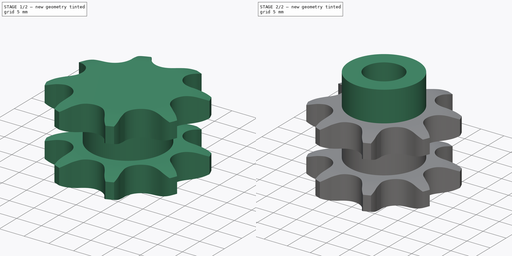
[diagram: build sequence overview — one tinted view per stage of 2, left to right]
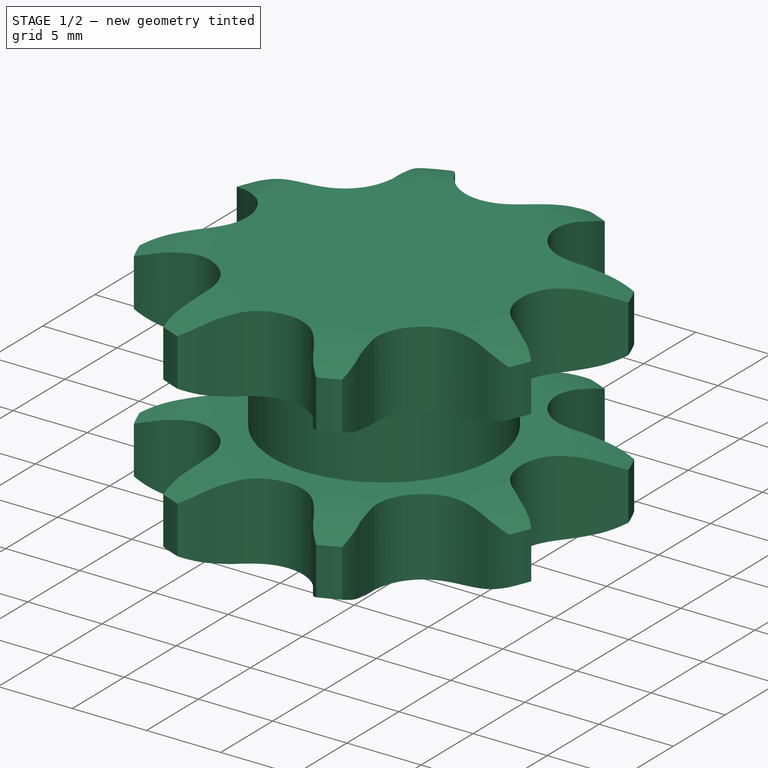
[diagram: stage 1 of 2 — iso view after this stage's code; geometry added in this stage tinted green]
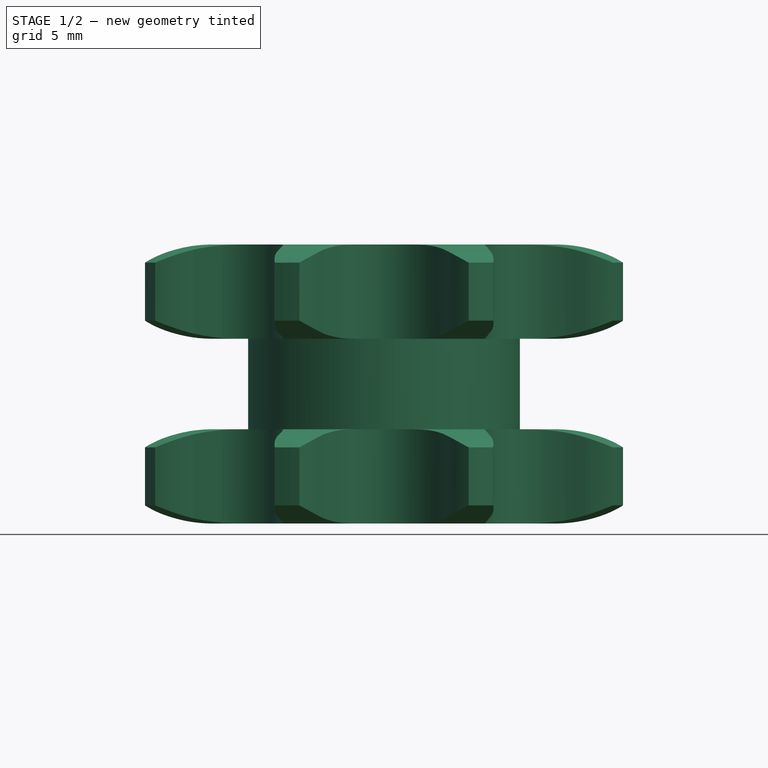
[diagram: stage 1 of 2 — front view after this stage's code; geometry added in this stage tinted green]
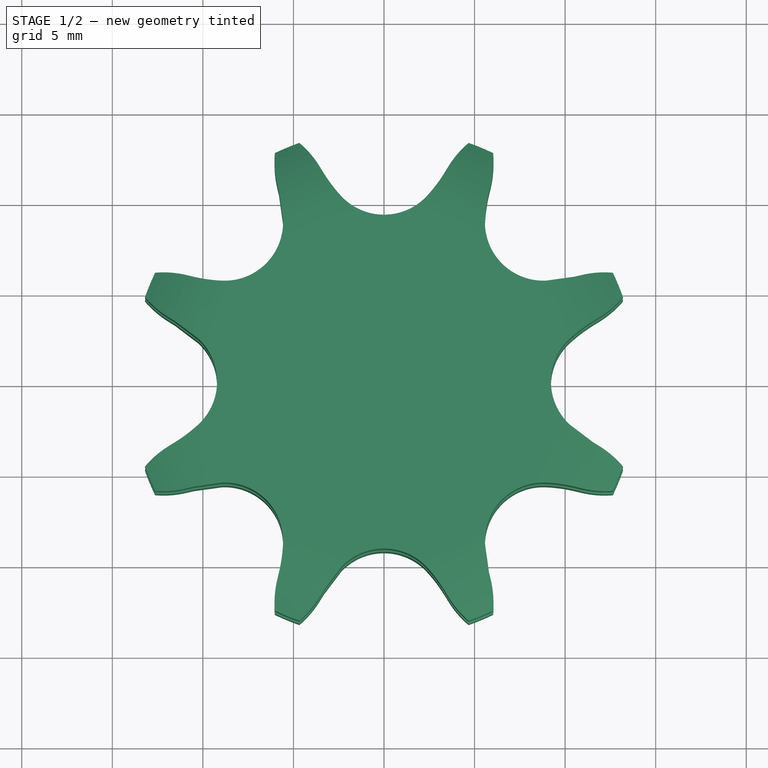
[diagram: stage 1 of 2 — top view after this stage's code; geometry added in this stage tinted green]
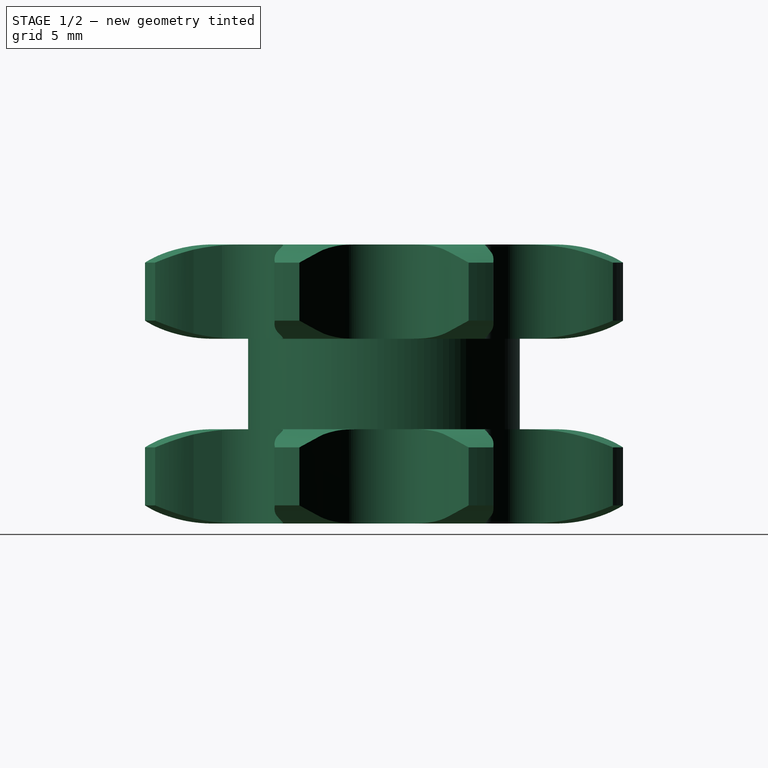
[diagram: stage 1 of 2 — right view after this stage's code; geometry added in this stage tinted green]
FCSTD DOCUMENT  (FreeCAD 0.21R33694 (Git))
Label: Sprocket ANSI duplex ⅜x⁷⁄₃₂
License: Creative Commons Attribution 4.0
LicenseURL: https://creativecommons.org/licenses/by/4.0/
objects: Sketcher::SketchObject×3, PartDesign::Pad×2, Spreadsheet::Sheet×1, Part::Part2DObjectPython×1, PartDesign::Groove×1, PartDesign::Pocket×1, PartDesign::Body×1
note: 13 computed .brp shape members not serialized (recipe doc carries the construction recipe); baked Part::Feature solids carry a one-line shape summary decoded from their .brp

FEATURE [Spreadsheet::Sheet] Spreadsheet  label="Data"
  TeethNumber = 0
  cells = A1='Teeth number; B1='P (Pitch); C1='Wc (Chain width); D1='Dr (Roller diameter); E1='Tr (Tooth radius); F1='Rw (Radius width); G1='Wt1 (Tooth width 1); H1='Wt2 (Tooth width 2); I1='z (Number of teeth); J1='De (External Diameter); K1='Dp (pitch diameter); L1='d (Hub diameter); M1='D (Hole diameter); N1='H (Total height); A2==hiddenref(.TeethNumber.String); B2(P)==.B3; C2(Wc)==.C3; D2(Dr)==.D3; E2(Tr)==.E3; F2(Rw)==.F3; G2(Wt1)==.G3; H2(Wt2)==.H3; I2(z)==.I3; J2(De)==.J3; K2(Dp)==.K3; L2(d)==.L3; M2(D)==.M3; N2(H)==.N3; A3='Z 8; B3==9.525 mm; C3==5.72 mm; D3==6.35 mm; E3==10 mm; F3==1 mm; G3==5.2 mm; H3==15.4 mm; I3=8; J3==28 mm; K3==24.89 mm; L3==15 mm; M3==8 mm; N3==22 mm; A4='Z 9; B4==9.525 mm; C4==5.72 mm; D4==6.35 mm; E4==10 mm; F4==1 mm; G4==5.2 mm; H4==15.4 mm; I4=9; J4==31 mm; K4==27.85 mm; L4==18 mm; M4==8 mm; N4==22 mm; A5='Z 10; B5==9.525 mm; C5==5.72 mm; D5==6.35 mm; E5==10 mm; F5==1 mm; G5==5.2 mm; H5==15.4 mm; I5=10; J5==34 mm; K5==30.82 mm; L5==20 mm; M5==8 mm; N5==22 mm; A6='Z 11; B6==9.525 mm; C6==5.72 mm; D6==6.35 mm; E6==10 mm; F6==1 mm; G6==5.2 mm; H6==15.4 mm; I6=11; J6==37 mm; K6==33.8 mm; L6==22 mm; M6==10 mm; N6==25 mm; A7='Z 12; B7==9.525 mm; C7==5.72 mm; D7==6.35 mm; E7==10 mm; F7==1 mm; G7==5.2 mm; H7==15.4 mm; I7=12; J7==40 mm; K7==36.8 mm; L7==25 mm; M7==10 mm; N7==25 mm; A8='Z 13; B8==9.525 mm; C8==5.72 mm; D8==6.35 mm; E8==10 mm; F8==1 mm; G8==5.2 mm; H8==15.4 mm; I8=13; J8==43 mm; K8==39.79 mm; L8==28 mm; M8==10 mm; N8==25 mm; A9='Z 14; B9==9.525 mm; C9==5.72 mm; D9==6.35 mm; E9==10 mm; F9==1 mm; G9==5.2 mm; H9==15.4 mm; I9=14; J9==46.3 mm; K9==42.8 mm; L9==31 mm; M9==10 mm; N9==25 mm; A10='Z 15; B10==9.525 mm; C10==5.72 mm; D10==6.35 mm; E10==10 mm; F10==1 mm; G10==5.2 mm; H10==15.4 mm; I10=15; J10==49.3 mm; K10==45.81 mm; L10==34 mm; M10==10 mm; N10==25 mm; A11='Z 16; B11==9.525 mm; C11==5.72 mm; D11==6.35 mm; E11==10 mm; F11==1 mm; G11==5.2 mm; H11==15.4 mm; I11=16; J11==52.3 mm; K11==48.82 mm; L11==37 mm; M11==12 mm; N11==30 mm; A12='Z 17; B12==9.525 mm; C12==5.72 mm; D12==6.35 mm; E12==10 mm; F12==1 mm; G12==5.2 mm; H12==15.4 mm; I12=17; J12==55.3 mm; K12==51.83 mm; L12==40 mm; M12==12 mm; N12==30 mm; A13='Z 18; B13==9.525 mm; C13==5.72 mm; D13==6.35 mm; E13==10 mm; F13==1 mm; G13==5.2 mm; H13==15.4 mm; I13=18; J13==58.3 mm; K13==54.85 mm; L13==43 mm; M13==12 mm; N13==30 mm; A14='Z 19; B14==9.525 mm; C14==5.72 mm; D14==6.35 mm; E14==10 mm; F14==1 mm; G14==5.2 mm; H14==15.4 mm; I14=19; J14==61.3 mm; K14==57.87 mm; L14==46 mm; M14==12 mm; N14==30 mm; A15='Z 20; B15==9.525 mm; C15==5.72 mm; D15==6.35 mm; +374 more cells
  expr: .TeethNumber.Enum = cells[<<A3:|>>]
  expr: .cells.Bind.B2.ZZ2 = tuple(.cells; <<B>> + str(hiddenref(TeethNumber) + 3); <<ZZ>> + str(hiddenref(TeethNumber) + 3))
FEATURE [Part::Part2DObjectPython] Sprocket  label="Teeth sketch"  # Draft 2D object (typed FeaturePython)
  ANSISize = 35
  NumberOfTeeth = 8
  Pitch = 9.525
  RollerDiameter = 6.35
  expr: NumberOfTeeth = <<Data>>.z
  expr: Pitch = <<Data>>.P
  expr: RollerDiameter = <<Data>>.Dr
FEATURE [PartDesign::Pad] Pad  label="Teeth"
  Direction = (0,0,1)
  Length = 15.4
  Length2 = 100
  Profile = -> Sprocket
  Type = 0
  expr: Length = <<Data>>.Wt2
FEATURE [Sketcher::SketchObject] Sketch  label="Radius"
  FullyConstrained = true
  MapMode = 5
  Placement = pos=(0,0,0) rot=(1,0,0;1.5708rad)
  Support = -> [XZ_Plane]
  expr: .Constraints.Re = <<Data>>.De / 2
  expr: .Constraints.Rw = <<Data>>.Rw
  expr: .Constraints.Wt1 = <<Data>>.Wt1
  expr: .Constraints.Wt2 = <<Data>>.Wt2
  expr: .Constraints.r = <<Data>>.d / 2
  sketch-geometry (16):
    g0: LineSegment StartX=9.6411 StartY=0 StartZ=0 EndX=19.6411 EndY=0 EndZ=0
    g1: LineSegment StartX=19.6411 StartY=15.4 StartZ=0 EndX=19.6411 EndY=0 EndZ=0
    g2: LineSegment StartX=14 StartY=1 StartZ=0 EndX=14 EndY=4.2 EndZ=0
    g3: LineSegment StartX=9.6411 StartY=5.2 StartZ=0 EndX=9.6411 EndY=0 EndZ=0
    g4: LineSegment StartX=9.6411 StartY=5.2 StartZ=0 EndX=9.6411 EndY=10.2 EndZ=0
    g5: LineSegment StartX=14 StartY=11.2 StartZ=0 EndX=14 EndY=4.2 EndZ=0
    g6: LineSegment StartX=14 StartY=11.2 StartZ=0 EndX=14 EndY=14.4 EndZ=0
    g7: LineSegment StartX=9.6411 StartY=10.2 StartZ=0 EndX=9.6411 EndY=15.4 EndZ=0
    g8: LineSegment StartX=9.6411 StartY=15.4 StartZ=0 EndX=19.6411 EndY=15.4 EndZ=0
    g9: LineSegment StartX=9.6411 StartY=10.2 StartZ=0 EndX=7.5 EndY=10.2 EndZ=0
    g10: LineSegment StartX=7.5 StartY=10.2 StartZ=0 EndX=7.5 EndY=5.2 EndZ=0
    g11: LineSegment StartX=7.5 StartY=5.2 StartZ=0 EndX=9.6411 EndY=5.2 EndZ=0
    g12: ArcOfCircle CenterX=9.6411 CenterY=10 CenterZ=0 NormalX=0 NormalY=0 NormalZ=1 AngleXU=0 Radius=10 StartAngle=4.71239 EndAngle=5.16342
    g13: ArcOfCircle CenterX=9.6411 CenterY=-4.8 CenterZ=0 NormalX=0 NormalY=0 NormalZ=1 AngleXU=0 Radius=10 StartAngle=1.11977 EndAngle=1.5708
    g14: ArcOfCircle CenterX=9.6411 CenterY=20.2 CenterZ=0 NormalX=0 NormalY=0 NormalZ=1 AngleXU=0 Radius=10 StartAngle=4.71239 EndAngle=5.16342
    g15: ArcOfCircle CenterX=9.6411 CenterY=5.4 CenterZ=0 NormalX=0 NormalY=0 NormalZ=1 AngleXU=0 Radius=10 StartAngle=1.11977 EndAngle=1.5708
  constraints (49):
    c: PointOnObject(g0,g-1)
    c: DistanceY(g0,g2) = 1  'Rw'
    c: PointOnObject(g0,g-1)
    c: Coincident(g1,g0)
    c: Vertical(g1)
    c: DistanceX(g2) = 14  'Re'
    c: Vertical(g2)
    c: Vertical(g3)
    c: Vertical(g4)
    c: Vertical(g5)
    c: Coincident(g7,g4)
    c: Vertical(g7)
    c: Vertical(g6)
    c: Coincident(g8,g7)
    c: Coincident(g8,g1)
    c: Horizontal(g8)
    c: DistanceY(g3,g3) = 5.2  'Wt1'
    c: Equal(g3,g7)
    c: DistanceY(g1,g1) = 15.4  'Wt2'
    c: Equal(g6,g2)
    c: DistanceX(g8,g8) = 10
    c: Horizontal(g9)
    c: Coincident(g9,g10)
    c: Vertical(g10)
    c: Coincident(g10,g11)
    c: Horizontal(g11)
    c: DistanceX(g9) = 7.5  'r'
    c: Coincident(g0,g3)
    c: Coincident(g4,g11)
    c: Coincident(g3,g11)
    c: Coincident(g4,g9)
    c: Coincident(g5,g6)
    c: Coincident(g2,g5)
    c: PointOnObject(g12,g3)
    c: Coincident(g12,g0)
    c: Coincident(g12,g2)
    c: PointOnObject(g13,g3)
    c: Coincident(g13,g2)
    c: Coincident(g13,g11)
    c: PointOnObject(g14,g7)
    c: Coincident(g14,g9)
    c: Coincident(g14,g6)
    c: PointOnObject(g15,g7)
    c: Coincident(g15,g6)
    c: Coincident(g15,g8)
    c: Equal(g12,g13)
    c: Equal(g13,g14)
    c: Radius(g12) = 10  'Tr'
    c: DistanceX(g6,g1) = 5.6411
FEATURE [PartDesign::Groove] Groove  label="Teeth Radius"
  Angle = 360
  Axis = (-3e-16,3e-16,1)
  Base = (0,0,0)
  BaseFeature = -> Pad
  Profile = -> Sketch
  ReferenceAxis = -> Z_Axis
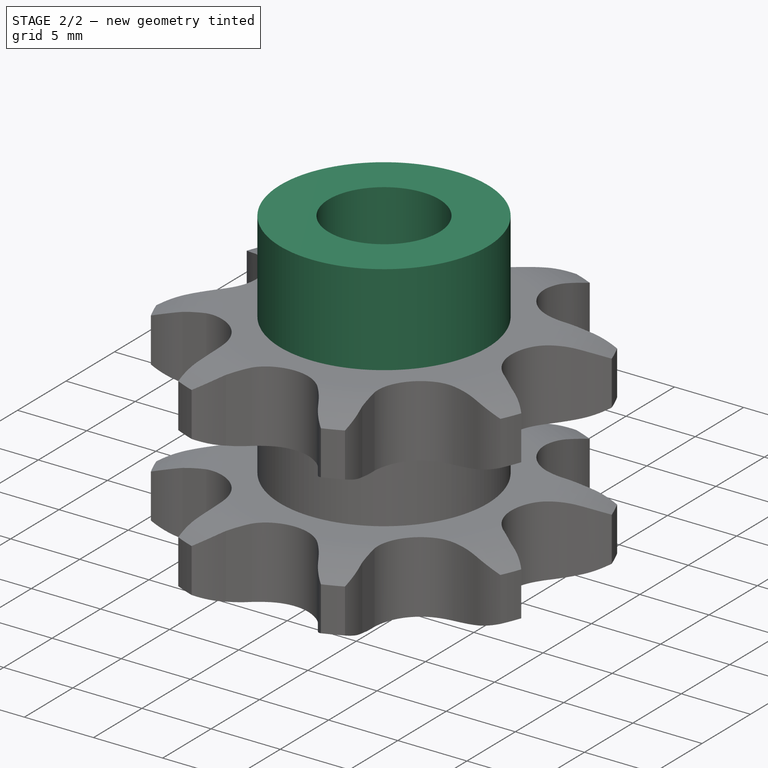
[diagram: stage 2 of 2 — iso view after this stage's code; geometry added in this stage tinted green]
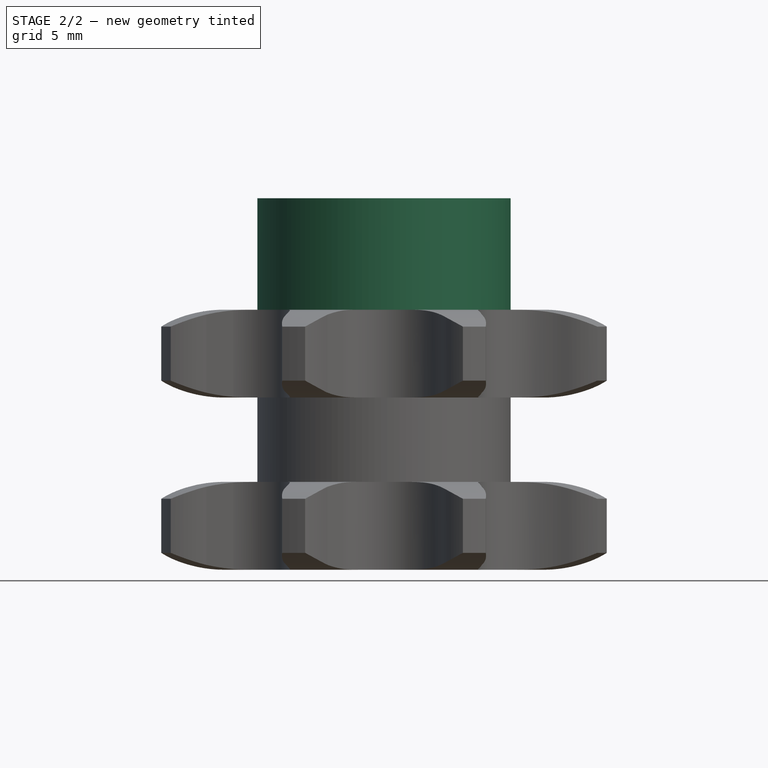
[diagram: stage 2 of 2 — front view after this stage's code; geometry added in this stage tinted green]
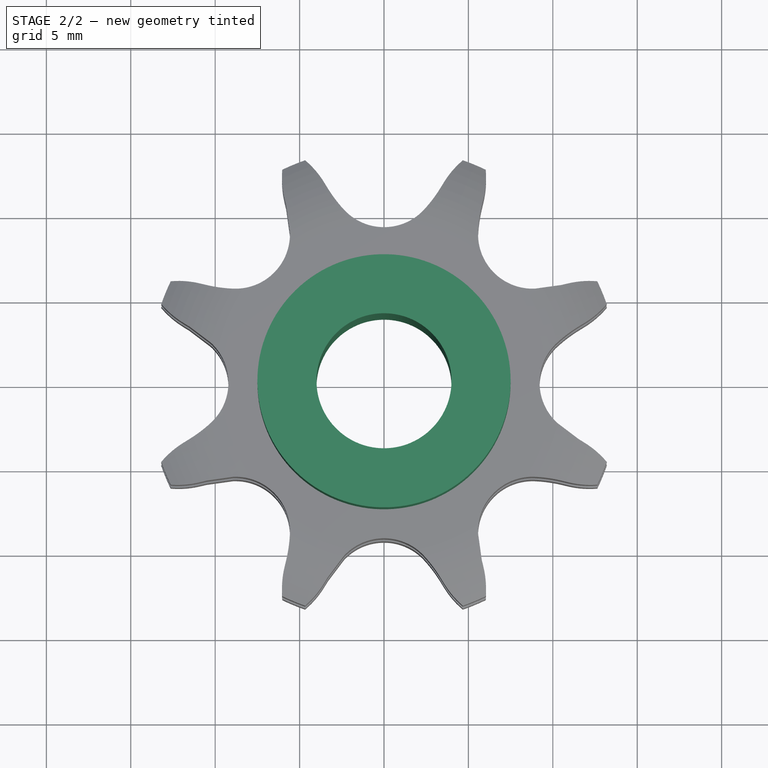
[diagram: stage 2 of 2 — top view after this stage's code; geometry added in this stage tinted green]
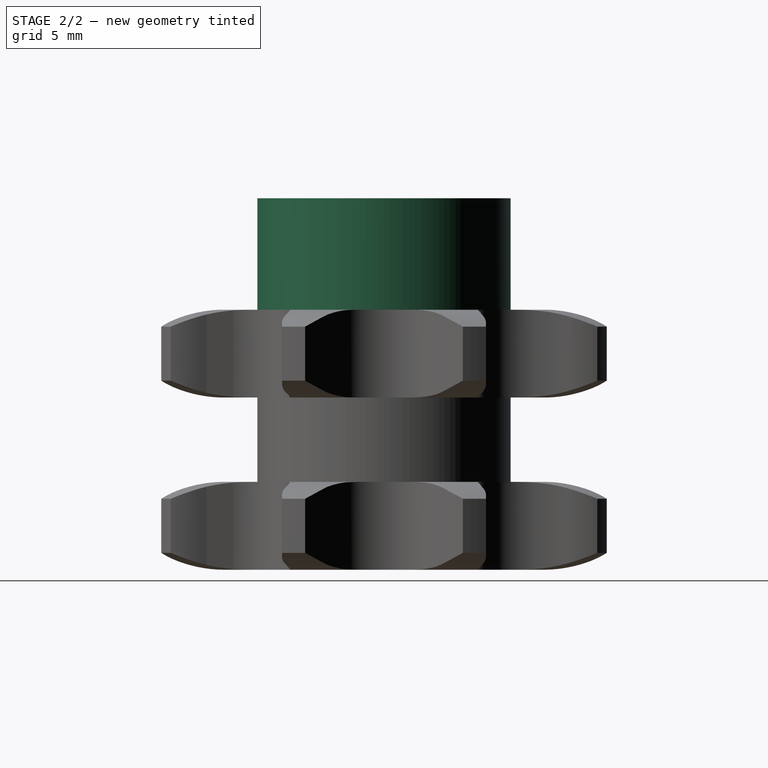
[diagram: stage 2 of 2 — right view after this stage's code; geometry added in this stage tinted green]
FEATURE [Sketcher::SketchObject] Sketch001  label="Hub sketch"
  FullyConstrained = true
  MapMode = 5
  Support = -> [XY_Plane]
  expr: .Constraints.r = <<Data>>.d
  sketch-geometry (1):
    g0: Circle CenterX=0 CenterY=0 CenterZ=0 NormalX=0 NormalY=0 NormalZ=1 AngleXU=0 Radius=7.5
  constraints (2):
    c: Coincident(g0,g-1)
    c: Diameter(g0) = 15  'r'
FEATURE [PartDesign::Pad] Pad001  label="Hub"
  BaseFeature = -> Groove
  Direction = (0,0,1)
  Length = 22
  Length2 = 100
  Profile = -> Sketch001
  Type = 0
FEATURE [Sketcher::SketchObject] Sketch002  label="Hole sketch"
  FullyConstrained = true
  MapMode = 5
  Support = -> [XY_Plane]
  expr: .Constraints.R = <<Data>>.D
  sketch-geometry (1):
    g0: Circle CenterX=0 CenterY=0 CenterZ=0 NormalX=0 NormalY=0 NormalZ=1 AngleXU=0 Radius=4
  constraints (2):
    c: Coincident(g0,g-1)
    c: Diameter(g0) = 8  'R'
FEATURE [PartDesign::Pocket] Pocket  label="Hole"
  BaseFeature = -> Pad001
  Direction = (0,0,-1)
  Length = 5
  Length2 = 100
  Midplane = true
  Profile = -> Sketch002
  Type = 1
FEATURE [PartDesign::Body] Body  label="Sprocket ANSI duplex ⅜x⁷⁄₃₂ z8"
  Group = -> [Sprocket,Pad,Sketch,Groove,Sketch001,Pad001,Sketch002,Pocket]
  Origin = -> Origin
  Tip = -> Pocket
  expr: Label = <<Sprocket ANSI duplex ⅜x⁷⁄₃₂ z%s>> % <<Data>>.z
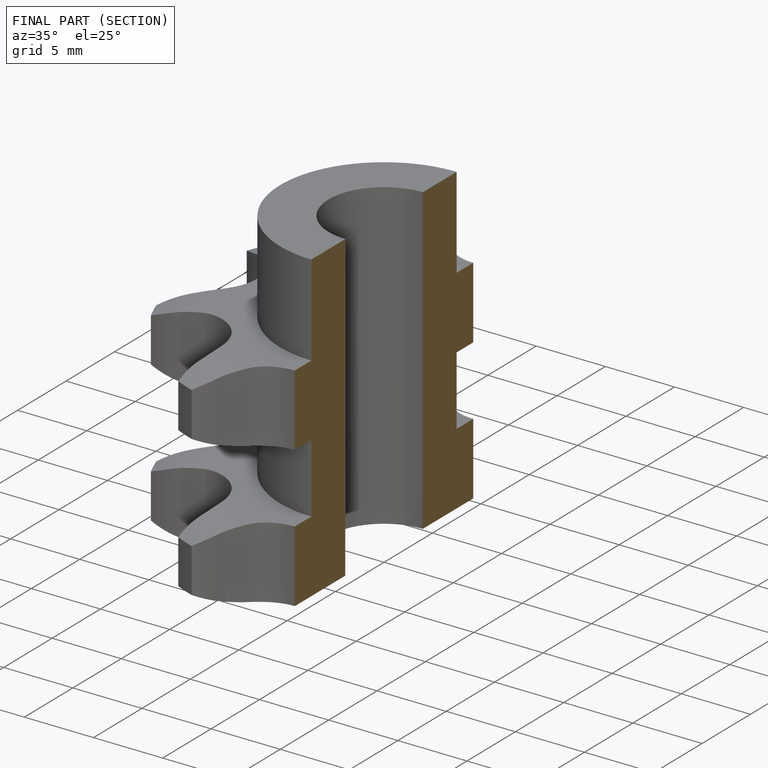
[diagram: finished part — half-section view (interior)]
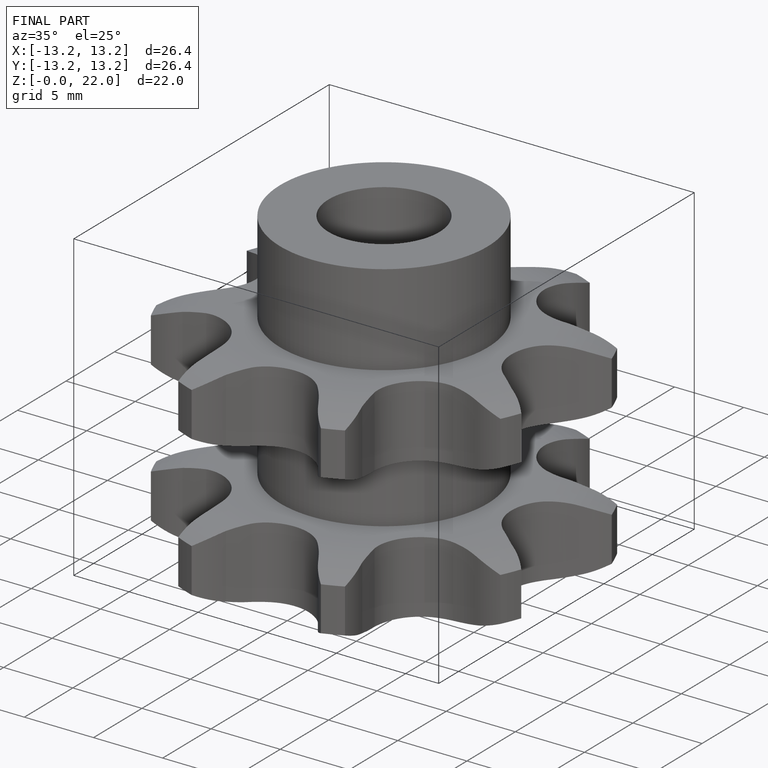
[diagram: finished part — iso view with bounding-box wireframe]
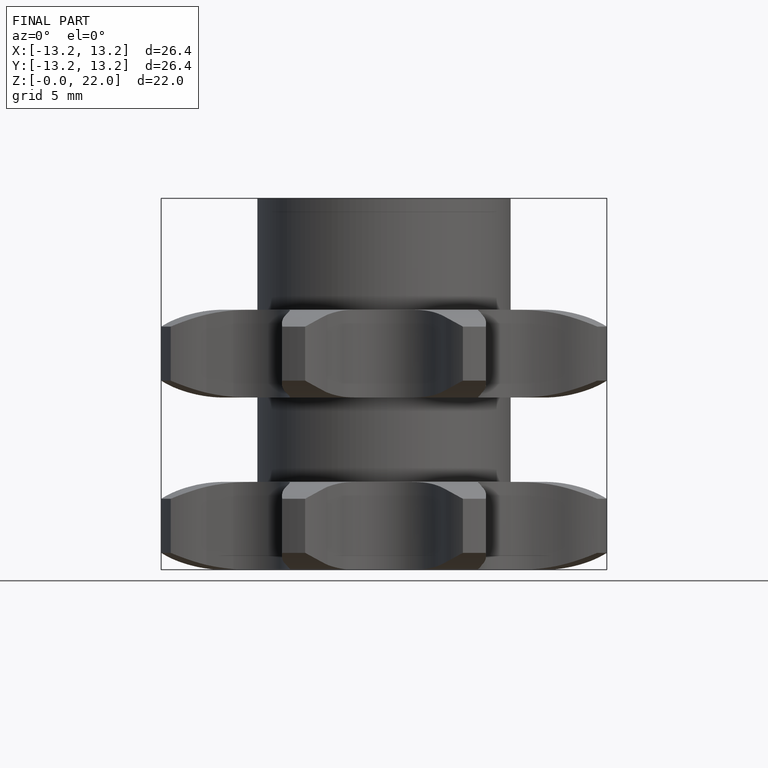
[diagram: finished part — front view with bounding-box wireframe]
